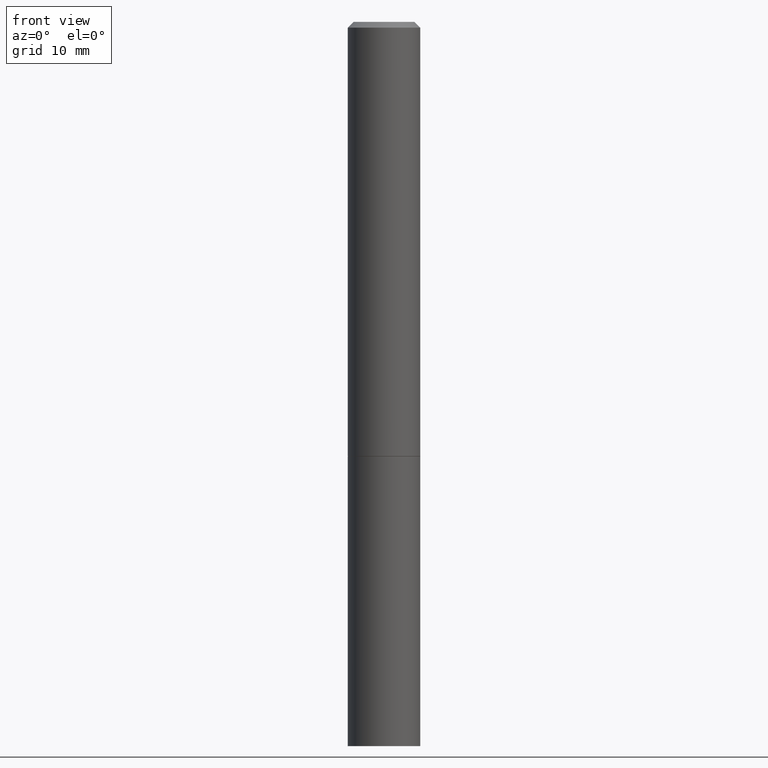
[diagram: clean part render]
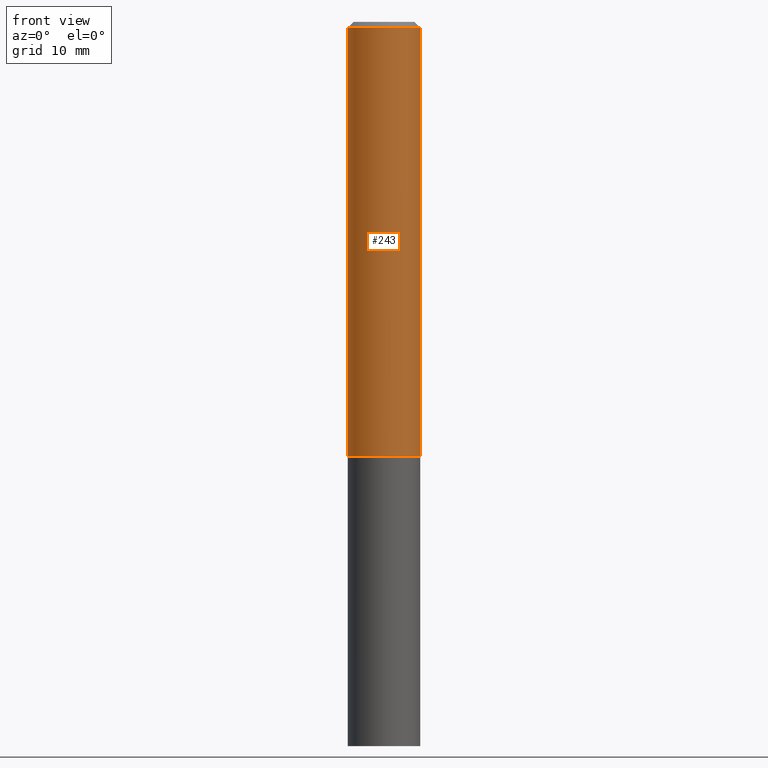
[diagram: same view with one face highlighted and labeled with its STEP entity id]
A machine part, front view. The second image highlights one B-rep face of the part: STEP entity #243.
In plain terms, the highlighted cylindrical surface (edge-blend (fillet) strip) has radius 3.175 mm, axis along (-0, 0, 1).
Its self-contained STEP definition (entity closure, byte-faithful):
#12 = VERTEX_POINT ( 'NONE', #104 ) ;
#28 = AXIS2_PLACEMENT_3D ( 'NONE', #221, #113, #142 ) ;
#50 = DIRECTION ( 'NONE',  ( -2.445468806185136597E-29, 3.491481338843145583E-15, 1.000000000000000000 ) ) ;
#63 = CIRCLE ( 'NONE', #254, 0.1249999999999997780 ) ;
#66 = VERTEX_POINT ( 'NONE', #356 ) ;
#68 = LINE ( 'NONE', #363, #133 ) ;
#74 = ORIENTED_EDGE ( 'NONE', *, *, #236, .F. ) ;
#75 = AXIS2_PLACEMENT_3D ( 'NONE', #114, #50, #273 ) ;
#94 = ORIENTED_EDGE ( 'NONE', *, *, #126, .T. ) ;
#104 = CARTESIAN_POINT ( 'NONE',  ( 0.1249999999999997780, -9.273918764983029686E-16, -0.02000000000000004552 ) ) ;
#113 = DIRECTION ( 'NONE',  ( -2.445468806185136597E-29, 3.491481338843145583E-15, 1.000000000000000000 ) ) ;
#114 = CARTESIAN_POINT ( 'NONE',  ( 3.665757740471519853E-29, -5.233730526925875958E-15, -1.499000000000000110 ) ) ;
#115 = CYLINDRICAL_SURFACE ( 'NONE', #28, 0.1249999999999999029 ) ;
#126 = EDGE_CURVE ( 'NONE', #66, #261, #233, .T. ) ;
#129 = EDGE_CURVE ( 'NONE', #66, #317, #219, .T. ) ;
#133 = VECTOR ( 'NONE', #311, 39.37007874015748143 ) ;
#140 = CARTESIAN_POINT ( 'NONE',  ( 4.890937612370284544E-31, -6.982962677686307633E-17, -0.02000000000000004552 ) ) ;
#141 = EDGE_CURVE ( 'NONE', #261, #12, #68, .T. ) ;
#142 = DIRECTION ( 'NONE',  ( 1.000000000000000000, -6.982962677686266711E-15, 4.876176775795935793E-29 ) ) ;
#144 = CARTESIAN_POINT ( 'NONE',  ( -0.1249999999999999029, 8.881784197001245421E-16, -6.148668862818627323E-30 ) ) ;
#180 = VECTOR ( 'NONE', #200, 39.37007874015748143 ) ;
#200 = DIRECTION ( 'NONE',  ( -2.445468806185136877E-29, 3.491481338843145188E-15, 1.000000000000000000 ) ) ;
#218 = CARTESIAN_POINT ( 'NONE',  ( -0.1249999999999997780, 8.030407079339186601E-16, -0.02000000000000004552 ) ) ;
#219 = LINE ( 'NONE', #144, #180 ) ;
#221 = CARTESIAN_POINT ( 'NONE',  ( 0.000000000000000000, 0.000000000000000000, 0.000000000000000000 ) ) ;
#223 = DIRECTION ( 'NONE',  ( 1.000000000000000000, -6.982962677686266711E-15, 0.000000000000000000 ) ) ;
#233 = CIRCLE ( 'NONE', #75, 0.1250000000000000000 ) ;
#236 = EDGE_CURVE ( 'NONE', #317, #12, #63, .T. ) ;
#243 = ADVANCED_FACE ( 'NONE', ( #355 ), #115, .T. ) ;
#254 = AXIS2_PLACEMENT_3D ( 'NONE', #140, #306, #223 ) ;
#261 = VERTEX_POINT ( 'NONE', #327 ) ;
#268 = EDGE_LOOP ( 'NONE', ( #294, #94, #325, #74 ) ) ;
#273 = DIRECTION ( 'NONE',  ( 1.000000000000000000, -6.982962677686262766E-15, 0.000000000000000000 ) ) ;
#294 = ORIENTED_EDGE ( 'NONE', *, *, #129, .F. ) ;
#306 = DIRECTION ( 'NONE',  ( -2.445468806185136597E-29, 3.491481338843145583E-15, 1.000000000000000000 ) ) ;
#311 = DIRECTION ( 'NONE',  ( -2.445468806185136877E-29, 3.491481338843145188E-15, 1.000000000000000000 ) ) ;
#317 = VERTEX_POINT ( 'NONE', #218 ) ;
#325 = ORIENTED_EDGE ( 'NONE', *, *, #141, .T. ) ;
#327 = CARTESIAN_POINT ( 'NONE',  ( 0.1250000000000000000, -6.106600861636658508E-15, -1.499000000000000110 ) ) ;
#355 = FACE_OUTER_BOUND ( 'NONE', #268, .T. ) ;
#356 = CARTESIAN_POINT ( 'NONE',  ( -0.1250000000000000278, -1.763601657151242227E-15, -1.499000000000000110 ) ) ;
#363 = CARTESIAN_POINT ( 'NONE',  ( 0.1249999999999999029, -8.728703347107826486E-16, 6.095220969744914837E-30 ) ) ;